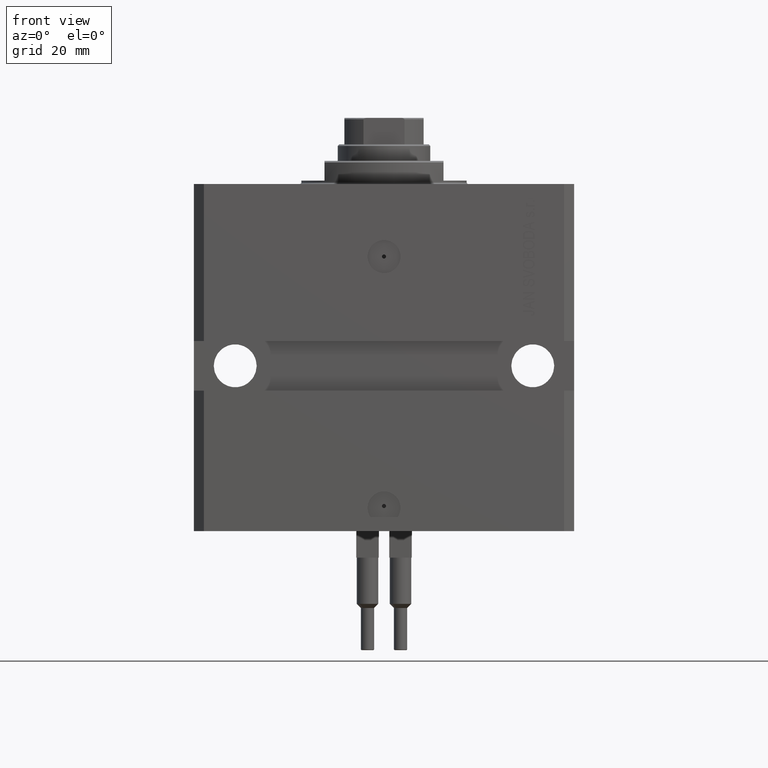
[diagram: clean part render]
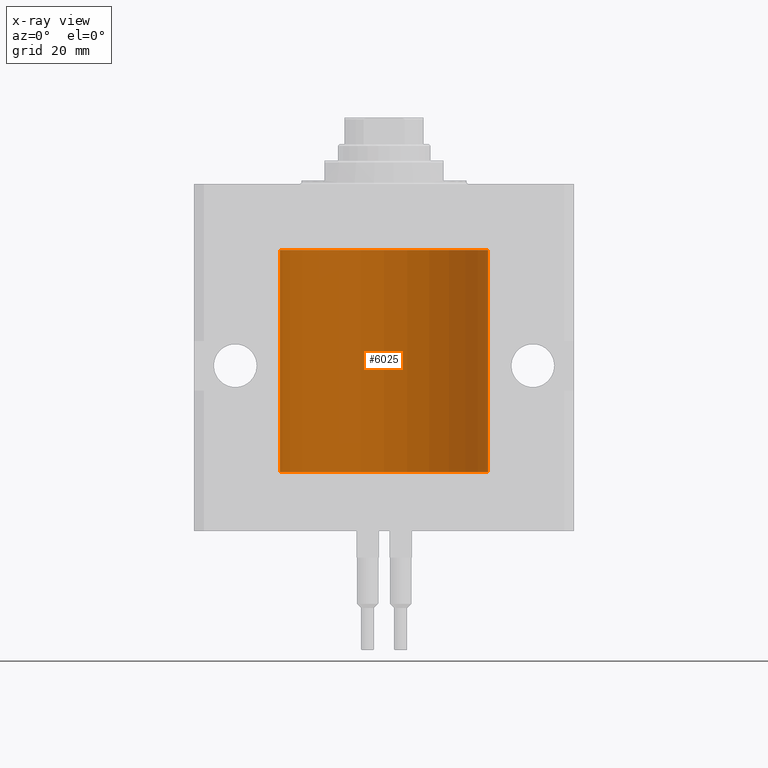
[diagram: x-ray — body ghosted, one internal face saturated and labeled with its STEP entity id]
A machine part, front view, then the same camera in x-ray: the body is ghosted and one INTERNAL B-rep face — a face not visible from any outside direction — is saturated and labeled: STEP entity #6025.
In plain terms, the highlighted cylindrical surface (partial cylindrical patch) has radius 31.5 mm, axis along (0, 0, 1).
Its self-contained STEP definition (entity closure, byte-faithful):
#256 = VECTOR ( 'NONE', #42301, 1000.000000000000000 ) ;
#909 = DIRECTION ( 'NONE',  ( 1.000000000000000000, 0.000000000000000000, 0.000000000000000000 ) ) ;
#929 = CARTESIAN_POINT ( 'NONE',  ( 31.49966575203784558, 0.1636755595825546972, -29.60873030821186802 ) ) ;
#969 = CIRCLE ( 'NONE', #39693, 31.50000000000000000 ) ;
#1389 = EDGE_CURVE ( 'NONE', #15267, #42560, #43594, .T. ) ;
#2293 = EDGE_CURVE ( 'NONE', #9954, #43089, #36854, .T. ) ;
#2333 = CARTESIAN_POINT ( 'NONE',  ( 31.49851501686590893, 0.3150934959385818801, -84.54594721883857744 ) ) ;
#2691 = CARTESIAN_POINT ( 'NONE',  ( -31.49770767031179730, 0.3843648832734379295, -83.50046081259654329 ) ) ;
#2743 = CARTESIAN_POINT ( 'NONE',  ( -31.49853548231893541, 0.3253851488062238784, -29.55855470525682094 ) ) ;
#2913 = VECTOR ( 'NONE', #14993, 1000.000000000000000 ) ;
#3742 = CARTESIAN_POINT ( 'NONE',  ( -31.49380014137586414, 0.6249421240571522151, -28.83671479190292075 ) ) ;
#4029 = ORIENTED_EDGE ( 'NONE', *, *, #15996, .F. ) ;
#4107 = CARTESIAN_POINT ( 'NONE',  ( -31.50000000000000000, 3.857637417314162689E-15, -87.09999999999999432 ) ) ;
#4286 = CARTESIAN_POINT ( 'NONE',  ( -31.50000000000000000, 3.857637417314162689E-15, -87.09999999999999432 ) ) ;
#4593 = LINE ( 'NONE', #49507, #34047 ) ;
#4692 = CARTESIAN_POINT ( 'NONE',  ( 0.000000000000000000, 0.000000000000000000, -87.09999999999999432 ) ) ;
#4971 = CARTESIAN_POINT ( 'NONE',  ( 31.49527883250257432, 0.5574151849338060405, -29.32638608454755058 ) ) ;
#5232 = CARTESIAN_POINT ( 'NONE',  ( -31.50000000000000000, 6.762885151983182724E-15, -28.37500000000000355 ) ) ;
#5522 = FACE_OUTER_BOUND ( 'NONE', #47490, .T. ) ;
#5608 = LINE ( 'NONE', #47348, #6645 ) ;
#5687 = CARTESIAN_POINT ( 'NONE',  ( 31.49379899281762363, 0.6249999999996151967, -28.83697036533062885 ) ) ;
#5760 = CARTESIAN_POINT ( 'NONE',  ( 31.49379899281745665, 0.6250000000082825968, -83.99999999999904787 ) ) ;
#6025 = ADVANCED_FACE ( 'NONE', ( #5522 ), #35618, .F. ) ;
#6179 = CARTESIAN_POINT ( 'NONE',  ( 31.49379899281745665, 0.6250000000082756024, -28.99999999999905853 ) ) ;
#6325 = CARTESIAN_POINT ( 'NONE',  ( 31.50000000000006395, 3.442404755096224483E-13, -83.37499999999675993 ) ) ;
#6496 = CARTESIAN_POINT ( 'NONE',  ( 31.50000000000006395, 3.442404755096224483E-13, -83.37499999999675993 ) ) ;
#6645 = VECTOR ( 'NONE', #32167, 1000.000000000000000 ) ;
#6783 = CARTESIAN_POINT ( 'NONE',  ( -31.49966591610108679, 0.1636376958180631447, -28.39126189995838700 ) ) ;
#7071 = ORIENTED_EDGE ( 'NONE', *, *, #22446, .T. ) ;
#7233 = CARTESIAN_POINT ( 'NONE',  ( -31.50000000000000000, 7.975607743522037396E-16, -83.37500000000000000 ) ) ;
#7481 = ORIENTED_EDGE ( 'NONE', *, *, #1389, .T. ) ;
#7535 = CARTESIAN_POINT ( 'NONE',  ( -31.49851563474691929, 0.3150284575672404608, -28.45401791159624949 ) ) ;
#7952 = CARTESIAN_POINT ( 'NONE',  ( 31.50000000000000000, -1.286676774952591455E-15, -29.62500000000000000 ) ) ;
#9216 = CARTESIAN_POINT ( 'NONE',  ( 31.50000000000000000, 0.1631291455194386619, -28.37500000000015277 ) ) ;
#9529 = CARTESIAN_POINT ( 'NONE',  ( 31.49379899281762363, 0.6249999999996236344, -83.83697036533064306 ) ) ;
#9712 = CARTESIAN_POINT ( 'NONE',  ( -31.50000000000000000, 7.975607743522037396E-16, -83.37500000000000000 ) ) ;
#9909 = CARTESIAN_POINT ( 'NONE',  ( 31.49379899281745665, 0.6250000000082825968, -83.99999999999904787 ) ) ;
#9954 = VERTEX_POINT ( 'NONE', #7952 ) ;
#10072 = VECTOR ( 'NONE', #42183, 1000.000000000000000 ) ;
#10256 = CARTESIAN_POINT ( 'NONE',  ( -31.49999999999998579, 0.08259258789479478891, -83.37499999999998579 ) ) ;
#10399 = CARTESIAN_POINT ( 'NONE',  ( 31.49770674525946390, 0.3844410175904657834, -84.49948347834464357 ) ) ;
#10570 = CARTESIAN_POINT ( 'NONE',  ( -31.49526081842315151, 0.5587119163470772865, -29.32511513093050937 ) ) ;
#10771 = CARTESIAN_POINT ( 'NONE',  ( -31.50000000000006395, 3.480981129463732167E-13, -84.62500000000324007 ) ) ;
#10948 = B_SPLINE_CURVE_WITH_KNOTS ( 'NONE', 3,
 ( #22449, #25750, #6783, #7535, #26500, #14869, #3742, #41173, #10570, #2743, #49530, #11069 ),
 .UNSPECIFIED., .F., .F.,
 ( 4, 2, 2, 2, 2, 4 ),
 ( 5.322949309211407119E-19, 0.0002442604562134704257, 0.0004885209124269403094, 0.0009770418248538795345, 0.001465562737280818977, 0.001954083649707758635 ),
 .UNSPECIFIED. ) ;
#11069 = CARTESIAN_POINT ( 'NONE',  ( -31.50000000000006395, 3.480980906124966778E-13, -29.62500000000323297 ) ) ;
#12291 = VERTEX_POINT ( 'NONE', #4286 ) ;
#12383 = VECTOR ( 'NONE', #29295, 1000.000000000000000 ) ;
#13822 = VERTEX_POINT ( 'NONE', #44911 ) ;
#13845 = CARTESIAN_POINT ( 'NONE',  ( 31.50000000000000000, 0.000000000000000000, -87.09999999999999432 ) ) ;
#14556 = CARTESIAN_POINT ( 'NONE',  ( -31.49851563474691218, 0.3150284575672411824, -83.45401791159622462 ) ) ;
#14818 = CARTESIAN_POINT ( 'NONE',  ( -31.49380014137585704, 0.6249421240571523262, -83.83671479190289233 ) ) ;
#14869 = CARTESIAN_POINT ( 'NONE',  ( -31.49528028230854559, 0.5573323339569596913, -28.67349008819320488 ) ) ;
#14993 = DIRECTION ( 'NONE',  ( -0.000000000000000000, -0.000000000000000000, 1.000000000000000000 ) ) ;
#15114 = CARTESIAN_POINT ( 'NONE',  ( 31.50000000000000000, -2.492939093807799249E-15, -84.62499999999998579 ) ) ;
#15267 = VERTEX_POINT ( 'NONE', #29425 ) ;
#15415 = EDGE_CURVE ( 'NONE', #12291, #49980, #22566, .T. ) ;
#15996 = EDGE_CURVE ( 'NONE', #47486, #30789, #38370, .T. ) ;
#16749 = ORIENTED_EDGE ( 'NONE', *, *, #46480, .T. ) ;
#16937 = VERTEX_POINT ( 'NONE', #15114 ) ;
#17269 = EDGE_CURVE ( 'NONE', #30653, #13822, #4593, .T. ) ;
#17374 = EDGE_CURVE ( 'NONE', #30813, #13822, #969, .T. ) ;
#17380 = CARTESIAN_POINT ( 'NONE',  ( 31.49526225382467359, 0.5586305680866429091, -83.67476160622149450 ) ) ;
#17550 = CARTESIAN_POINT ( 'NONE',  ( 31.49853627283156499, 0.3253078817183363558, -28.44140989403645747 ) ) ;
#19028 = CARTESIAN_POINT ( 'NONE',  ( 31.50000000000000000, 0.000000000000000000, -87.09999999999999432 ) ) ;
#19423 = CARTESIAN_POINT ( 'NONE',  ( 31.50000000000006395, 3.442404531757459093E-13, -28.37499999999677058 ) ) ;
#19881 = DIRECTION ( 'NONE',  ( 1.000000000000000000, 0.000000000000000000, 0.000000000000000000 ) ) ;
#20098 = DIRECTION ( 'NONE',  ( 0.000000000000000000, 0.000000000000000000, 1.000000000000000000 ) ) ;
#20689 = DIRECTION ( 'NONE',  ( 1.000000000000000000, 0.000000000000000000, 0.000000000000000000 ) ) ;
#20727 = EDGE_CURVE ( 'NONE', #29556, #30813, #48511, .T. ) ;
#20930 = DIRECTION ( 'NONE',  ( -0.000000000000000000, -0.000000000000000000, 1.000000000000000000 ) ) ;
#21990 = ORIENTED_EDGE ( 'NONE', *, *, #2293, .T. ) ;
#22175 = CARTESIAN_POINT ( 'NONE',  ( 0.000000000000000000, 0.000000000000000000, -20.00000000000000355 ) ) ;
#22446 = EDGE_CURVE ( 'NONE', #42560, #9954, #5608, .T. ) ;
#22449 = CARTESIAN_POINT ( 'NONE',  ( -31.50000000000000000, 6.762885151983182724E-15, -28.37500000000000355 ) ) ;
#22468 = CIRCLE ( 'NONE', #32195, 31.50000000000000000 ) ;
#22566 = LINE ( 'NONE', #4107, #256 ) ;
#22877 = CARTESIAN_POINT ( 'NONE',  ( -31.50000000000006395, 3.480980906124966778E-13, -29.62500000000323297 ) ) ;
#23072 = EDGE_CURVE ( 'NONE', #47486, #49980, #24411, .T. ) ;
#23826 = ORIENTED_EDGE ( 'NONE', *, *, #44881, .T. ) ;
#24171 = CARTESIAN_POINT ( 'NONE',  ( 31.50000000000000711, 0.08261130139621915280, -29.62499999999999289 ) ) ;
#24411 = B_SPLINE_CURVE_WITH_KNOTS ( 'NONE', 3,
 ( #7233, #10256, #44924, #14556, #2691, #45428, #14818, #30008, #34280, #42133, #49724, #10771 ),
 .UNSPECIFIED., .F., .F.,
 ( 4, 2, 2, 2, 2, 4 ),
 ( 3.075703443732137786E-18, 0.0002442604562134845204, 0.0004885209124269658965, 0.0009770418248538992670, 0.001465562737280832637, 0.001954083649707766008 ),
 .UNSPECIFIED. ) ;
#24804 = EDGE_CURVE ( 'NONE', #16937, #15267, #35771, .T. ) ;
#25750 = CARTESIAN_POINT ( 'NONE',  ( -31.50000000000000000, 0.08259258789479792529, -28.37500000000000355 ) ) ;
#26376 = LINE ( 'NONE', #19028, #2913 ) ;
#26500 = CARTESIAN_POINT ( 'NONE',  ( -31.49770767031179730, 0.3843648832734374854, -28.50046081259655395 ) ) ;
#26783 = CARTESIAN_POINT ( 'NONE',  ( 31.49379899281760231, 0.6250000000003351763, -29.16310352862698352 ) ) ;
#26807 = VERTEX_POINT ( 'NONE', #41673 ) ;
#27878 = ORIENTED_EDGE ( 'NONE', *, *, #23072, .T. ) ;
#28227 = CARTESIAN_POINT ( 'NONE',  ( 31.49770674525947101, 0.3844410175904570126, -29.49948347834465068 ) ) ;
#28459 = CARTESIAN_POINT ( 'NONE',  ( 31.49526225382467359, 0.5586305680866376910, -28.67476160622149806 ) ) ;
#29295 = DIRECTION ( 'NONE',  ( -0.000000000000000000, -0.000000000000000000, 1.000000000000000000 ) ) ;
#29425 = CARTESIAN_POINT ( 'NONE',  ( 31.49379899281745665, 0.6250000000082825968, -83.99999999999904787 ) ) ;
#29517 = CARTESIAN_POINT ( 'NONE',  ( 31.49853627283156499, 0.3253078817183396310, -83.44140989403643971 ) ) ;
#29556 = VERTEX_POINT ( 'NONE', #19423 ) ;
#30008 = CARTESIAN_POINT ( 'NONE',  ( -31.49379784581975272, 0.6250577973157672718, -84.16284184848845484 ) ) ;
#30395 = CARTESIAN_POINT ( 'NONE',  ( 31.49966575203785268, 0.1636755595825563903, -84.60873030821188934 ) ) ;
#30616 = AXIS2_PLACEMENT_3D ( 'NONE', #43725, #20930, #20689 ) ;
#30653 = VERTEX_POINT ( 'NONE', #5232 ) ;
#30789 = VERTEX_POINT ( 'NONE', #22877 ) ;
#30813 = VERTEX_POINT ( 'NONE', #42856 ) ;
#31416 = EDGE_CURVE ( 'NONE', #26807, #16937, #26376, .T. ) ;
#32167 = DIRECTION ( 'NONE',  ( -0.000000000000000000, -0.000000000000000000, 1.000000000000000000 ) ) ;
#32195 = AXIS2_PLACEMENT_3D ( 'NONE', #4692, #20098, #909 ) ;
#32804 = CARTESIAN_POINT ( 'NONE',  ( 31.50000000000000000, 0.1631291455194407158, -83.37500000000014211 ) ) ;
#33172 = CARTESIAN_POINT ( 'NONE',  ( 31.49379899281760942, 0.6250000000003405054, -84.16310352862699062 ) ) ;
#33519 = ORIENTED_EDGE ( 'NONE', *, *, #31416, .T. ) ;
#34047 = VECTOR ( 'NONE', #45459, 1000.000000000000000 ) ;
#34280 = CARTESIAN_POINT ( 'NONE',  ( -31.49526081842315151, 0.5587119163470756211, -84.32511513093052713 ) ) ;
#34648 = ORIENTED_EDGE ( 'NONE', *, *, #17374, .T. ) ;
#35618 = CYLINDRICAL_SURFACE ( 'NONE', #30616, 31.50000000000000000 ) ;
#35771 = B_SPLINE_CURVE_WITH_KNOTS ( 'NONE', 3,
 ( #41262, #37710, #30395, #2333, #10399, #49106, #33172, #9909 ),
 .UNSPECIFIED., .F., .F.,
 ( 4, 2, 2, 4 ),
 ( 2.422664849601941982E-18, 0.0002443157997801665674, 0.0004886315995603306411, 0.0009772631991206588969 ),
 .UNSPECIFIED. ) ;
#36854 = B_SPLINE_CURVE_WITH_KNOTS ( 'NONE', 3,
 ( #40080, #24171, #929, #43895, #28227, #4971, #26783, #47682 ),
 .UNSPECIFIED., .F., .F.,
 ( 4, 2, 2, 4 ),
 ( 1.824539386392990385E-18, 0.0002443157997801608753, 0.0004886315995603199075, 0.0009772631991206452359 ),
 .UNSPECIFIED. ) ;
#37710 = CARTESIAN_POINT ( 'NONE',  ( 31.50000000000000000, 0.08261130139621999935, -84.62499999999995737 ) ) ;
#37851 = DIRECTION ( 'NONE',  ( 0.000000000000000000, 0.000000000000000000, 1.000000000000000000 ) ) ;
#38051 = CARTESIAN_POINT ( 'NONE',  ( 31.49379899281745665, 0.6250000000082756024, -28.99999999999905853 ) ) ;
#38370 = LINE ( 'NONE', #49017, #10072 ) ;
#38499 = ORIENTED_EDGE ( 'NONE', *, *, #15415, .F. ) ;
#38526 = B_SPLINE_CURVE_WITH_KNOTS ( 'NONE', 3,
 ( #6179, #5687, #28459, #17550, #9216, #43633 ),
 .UNSPECIFIED., .F., .F.,
 ( 4, 2, 4 ),
 ( 0.0009772631991206452359, 0.001465673424414174614, 0.001954083649707703992 ),
 .UNSPECIFIED. ) ;
#39230 = CARTESIAN_POINT ( 'NONE',  ( -31.50000000000006395, 3.480981129463732167E-13, -84.62500000000324007 ) ) ;
#39498 = ORIENTED_EDGE ( 'NONE', *, *, #40147, .F. ) ;
#39693 = AXIS2_PLACEMENT_3D ( 'NONE', #22175, #37851, #19881 ) ;
#40001 = ORIENTED_EDGE ( 'NONE', *, *, #17269, .F. ) ;
#40080 = CARTESIAN_POINT ( 'NONE',  ( 31.50000000000000000, -1.286676774952591455E-15, -29.62500000000000000 ) ) ;
#40147 = EDGE_CURVE ( 'NONE', #26807, #12291, #22468, .T. ) ;
#41173 = CARTESIAN_POINT ( 'NONE',  ( -31.49379784581975983, 0.6250577973157599443, -29.16284184848848327 ) ) ;
#41262 = CARTESIAN_POINT ( 'NONE',  ( 31.50000000000000000, -2.492939093807799249E-15, -84.62499999999998579 ) ) ;
#41673 = CARTESIAN_POINT ( 'NONE',  ( 31.50000000000000000, 0.000000000000000000, -87.09999999999999432 ) ) ;
#42133 = CARTESIAN_POINT ( 'NONE',  ( -31.49853548231893541, 0.3253851488062164399, -84.55855470525685291 ) ) ;
#42183 = DIRECTION ( 'NONE',  ( -0.000000000000000000, -0.000000000000000000, 1.000000000000000000 ) ) ;
#42301 = DIRECTION ( 'NONE',  ( -0.000000000000000000, -0.000000000000000000, 1.000000000000000000 ) ) ;
#42560 = VERTEX_POINT ( 'NONE', #6325 ) ;
#42856 = CARTESIAN_POINT ( 'NONE',  ( 31.50000000000000000, 0.000000000000000000, -20.00000000000000355 ) ) ;
#43089 = VERTEX_POINT ( 'NONE', #38051 ) ;
#43594 = B_SPLINE_CURVE_WITH_KNOTS ( 'NONE', 3,
 ( #5760, #9529, #17380, #29517, #32804, #6496 ),
 .UNSPECIFIED., .F., .F.,
 ( 4, 2, 4 ),
 ( 0.0009772631991206588969, 0.001465673424414194563, 0.001954083649707730446 ),
 .UNSPECIFIED. ) ;
#43633 = CARTESIAN_POINT ( 'NONE',  ( 31.50000000000006395, 3.442404531757459093E-13, -28.37499999999677058 ) ) ;
#43725 = CARTESIAN_POINT ( 'NONE',  ( 0.000000000000000000, 0.000000000000000000, -87.09999999999999432 ) ) ;
#43895 = CARTESIAN_POINT ( 'NONE',  ( 31.49851501686590893, 0.3150934959385772727, -29.54594721883858099 ) ) ;
#44881 = EDGE_CURVE ( 'NONE', #30653, #30789, #10948, .T. ) ;
#44911 = CARTESIAN_POINT ( 'NONE',  ( -31.50000000000000000, 3.857637417314162689E-15, -20.00000000000000355 ) ) ;
#44924 = CARTESIAN_POINT ( 'NONE',  ( -31.49966591610109390, 0.1636376958180636443, -83.39126189995840832 ) ) ;
#45276 = ORIENTED_EDGE ( 'NONE', *, *, #24804, .T. ) ;
#45428 = CARTESIAN_POINT ( 'NONE',  ( -31.49528028230855270, 0.5573323339569611345, -83.67349008819321909 ) ) ;
#45459 = DIRECTION ( 'NONE',  ( -0.000000000000000000, -0.000000000000000000, 1.000000000000000000 ) ) ;
#45715 = ORIENTED_EDGE ( 'NONE', *, *, #20727, .T. ) ;
#46480 = EDGE_CURVE ( 'NONE', #43089, #29556, #38526, .T. ) ;
#47348 = CARTESIAN_POINT ( 'NONE',  ( 31.50000000000000000, 0.000000000000000000, -87.09999999999999432 ) ) ;
#47486 = VERTEX_POINT ( 'NONE', #9712 ) ;
#47490 = EDGE_LOOP ( 'NONE', ( #38499, #39498, #33519, #45276, #7481, #7071, #21990, #16749, #45715, #34648, #40001, #23826, #4029, #27878 ) ) ;
#47682 = CARTESIAN_POINT ( 'NONE',  ( 31.49379899281745665, 0.6250000000082756024, -28.99999999999905853 ) ) ;
#48511 = LINE ( 'NONE', #13845, #12383 ) ;
#49017 = CARTESIAN_POINT ( 'NONE',  ( -31.50000000000000000, 3.857637417314162689E-15, -87.09999999999999432 ) ) ;
#49106 = CARTESIAN_POINT ( 'NONE',  ( 31.49527883250257432, 0.5574151849338155884, -84.32638608454756479 ) ) ;
#49507 = CARTESIAN_POINT ( 'NONE',  ( -31.50000000000000000, 3.857637417314162689E-15, -87.09999999999999432 ) ) ;
#49530 = CARTESIAN_POINT ( 'NONE',  ( -31.50000000000000711, 0.1631661150515227865, -29.62499999999986500 ) ) ;
#49724 = CARTESIAN_POINT ( 'NONE',  ( -31.49999999999998579, 0.1631661150515253123, -84.62499999999982947 ) ) ;
#49980 = VERTEX_POINT ( 'NONE', #39230 ) ;